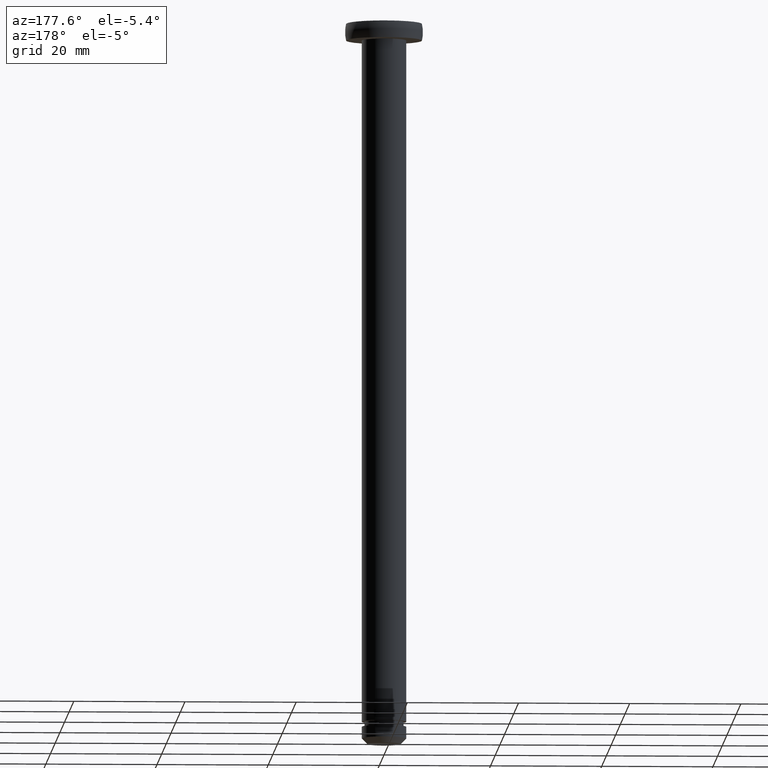
[diagram: clean part render]
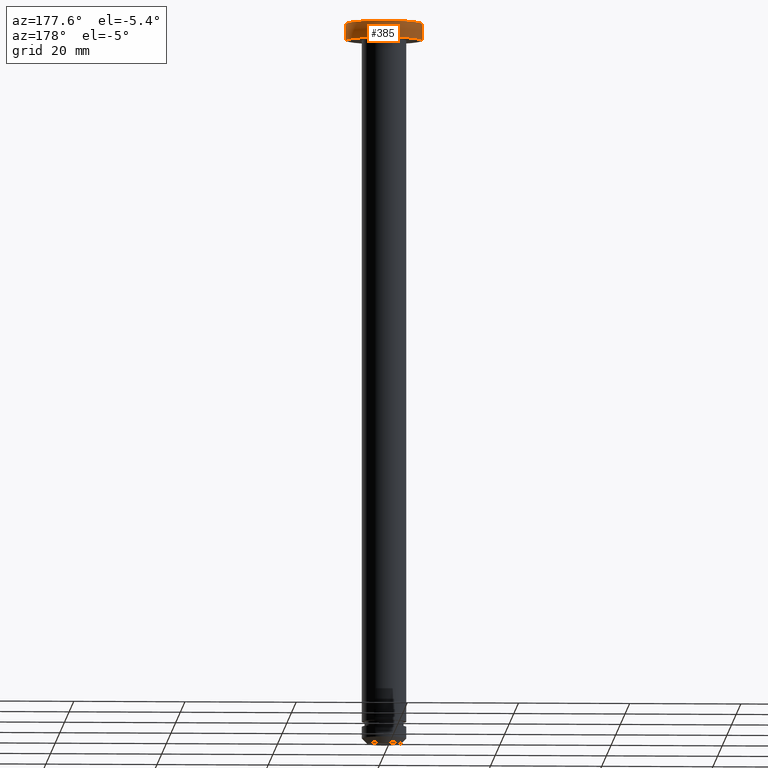
[diagram: same view with one face highlighted and labeled with its STEP entity id]
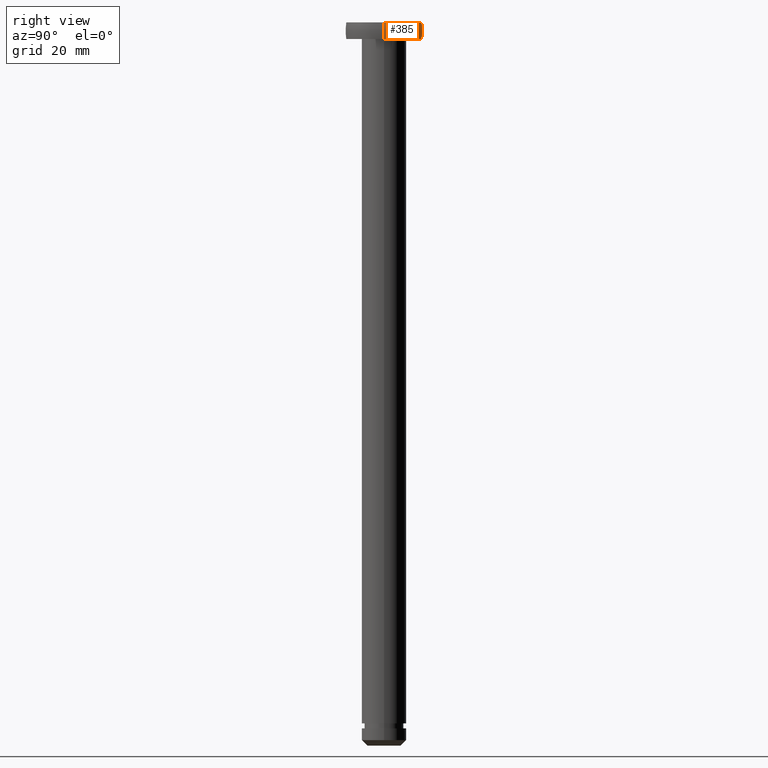
[diagram: same view with one face highlighted and labeled with its STEP entity id]
A machine part, auxiliary view. The second image highlights one B-rep face of the part: STEP entity #385.
A second angle (right view) of the same face is appended — the face is thin or edge-on in the first view.
In plain terms, the highlighted toroidal blend (fillet) surface has major radius 0.3572 mm and minor (blend) radius 6.6428 mm.
Its self-contained STEP definition (entity closure, byte-faithful):
#6 = VERTEX_POINT ( 'NONE', #292 ) ;
#7 = CARTESIAN_POINT ( 'NONE',  ( -0.3572332087698980000, 0.0000000000000000000, -1.500000009021705200 ) ) ;
#21 = CARTESIAN_POINT ( 'NONE',  ( 0.0000000000000000000, 0.0000000000000000000, 5.243895595530290800E-014 ) ) ;
#23 = DIRECTION ( 'NONE',  ( 0.0000000000000000000, 0.0000000000000000000, -1.000000000000000000 ) ) ;
#39 = ORIENTED_EDGE ( 'NONE', *, *, #432, .T. ) ;
#51 = TOROIDAL_SURFACE ( 'NONE', #210, 0.3572332087698980000, 6.642766791230087600 ) ;
#78 = VERTEX_POINT ( 'NONE', #380 ) ;
#81 = VERTEX_POINT ( 'NONE', #119 ) ;
#101 = FACE_OUTER_BOUND ( 'NONE', #240, .T. ) ;
#119 = CARTESIAN_POINT ( 'NONE',  ( 6.828427118366800400, 8.362411413718889200E-016, -3.000000018043434700 ) ) ;
#127 = VERTEX_POINT ( 'NONE', #187 ) ;
#143 = CIRCLE ( 'NONE', #442, 6.642766791230087600 ) ;
#173 = AXIS2_PLACEMENT_3D ( 'NONE', #232, #231, #229 ) ;
#175 = EDGE_CURVE ( 'NONE', #6, #81, #415, .T. ) ;
#179 = DIRECTION ( 'NONE',  ( -1.000000000000000000, -1.224646799147353200E-016, 0.0000000000000000000 ) ) ;
#184 = DIRECTION ( 'NONE',  ( -1.224646799147353200E-016, 1.000000000000000000, 0.0000000000000000000 ) ) ;
#187 = CARTESIAN_POINT ( 'NONE',  ( 6.828427118366800400, 8.362411413718889200E-016, 5.243895595530290800E-014 ) ) ;
#198 = CARTESIAN_POINT ( 'NONE',  ( 0.3572332087698980000, 4.374845056691938000E-017, -1.500000009021705200 ) ) ;
#210 = AXIS2_PLACEMENT_3D ( 'NONE', #462, #393, #364 ) ;
#211 = DIRECTION ( 'NONE',  ( -1.000000000000000000, 0.0000000000000000000, 0.0000000000000000000 ) ) ;
#213 = CIRCLE ( 'NONE', #352, 6.642766791230087600 ) ;
#229 = DIRECTION ( 'NONE',  ( -1.000000000000000000, 0.0000000000000000000, 0.0000000000000000000 ) ) ;
#231 = DIRECTION ( 'NONE',  ( 0.0000000000000000000, 0.0000000000000000000, -1.000000000000000000 ) ) ;
#232 = CARTESIAN_POINT ( 'NONE',  ( 0.0000000000000000000, 0.0000000000000000000, -3.000000018043434700 ) ) ;
#240 = EDGE_LOOP ( 'NONE', ( #39, #276, #387, #418 ) ) ;
#250 = CIRCLE ( 'NONE', #293, 6.828427118366800400 ) ;
#276 = ORIENTED_EDGE ( 'NONE', *, *, #344, .T. ) ;
#292 = CARTESIAN_POINT ( 'NONE',  ( -6.828427118366800400, 0.0000000000000000000, -3.000000018043434700 ) ) ;
#293 = AXIS2_PLACEMENT_3D ( 'NONE', #21, #23, #211 ) ;
#312 = EDGE_CURVE ( 'NONE', #78, #6, #213, .T. ) ;
#344 = EDGE_CURVE ( 'NONE', #127, #81, #143, .T. ) ;
#352 = AXIS2_PLACEMENT_3D ( 'NONE', #7, #443, #412 ) ;
#364 = DIRECTION ( 'NONE',  ( -1.000000000000000000, 0.0000000000000000000, 0.0000000000000000000 ) ) ;
#380 = CARTESIAN_POINT ( 'NONE',  ( -6.828427118366800400, 0.0000000000000000000, 5.243895595530290800E-014 ) ) ;
#385 = ADVANCED_FACE ( 'NONE', ( #101 ), #51, .T. ) ;
#387 = ORIENTED_EDGE ( 'NONE', *, *, #175, .F. ) ;
#393 = DIRECTION ( 'NONE',  ( 0.0000000000000000000, 0.0000000000000000000, -1.000000000000000000 ) ) ;
#412 = DIRECTION ( 'NONE',  ( 0.0000000000000000000, 0.0000000000000000000, -1.000000000000000000 ) ) ;
#415 = CIRCLE ( 'NONE', #173, 6.828427118366800400 ) ;
#418 = ORIENTED_EDGE ( 'NONE', *, *, #312, .F. ) ;
#432 = EDGE_CURVE ( 'NONE', #78, #127, #250, .T. ) ;
#442 = AXIS2_PLACEMENT_3D ( 'NONE', #198, #184, #179 ) ;
#443 = DIRECTION ( 'NONE',  ( -0.0000000000000000000, -1.000000000000000000, -0.0000000000000000000 ) ) ;
#462 = CARTESIAN_POINT ( 'NONE',  ( 0.0000000000000000000, 0.0000000000000000000, -1.500000009021705200 ) ) ;